MODEL vehicle_animation_sim
KIND model
BLOCK [Clock] Clock
  SID = 1
BLOCK [Mux] Mux3
  DisplayOption = bar
  Ports = [4, 1]
  SID = 6
BLOCK [Display] Simulation Time (s)
  Decimation = 1
  Ports = [1]
  SID = 7
BLOCK [Scope] X position (m)
  Ports = [1]
  SID = 11
  ScopeSpecificationString = Simulink.scopes.TimeScopeBlockCfg('CurrentConfiguration', extmgr.ConfigurationSet(extmgr.Configuration('Core','General UI',true),extmgr.Configuration('Core','Source UI',true),extmgr.Configuration('Sources','WiredSimulink',true,'DataLoggingSaveFormat','StructureWithTime','DataLoggingDecimation','1','DataLoggingDecimateData',true),extmgr.Configuration('Visuals','Time Domain',true,'SerializedDisplays...<+1631ch>
BLOCK [Scope] Y position (m)
  Ports = [1]
  SID = 12
  ScopeSpecificationString = Simulink.scopes.TimeScopeBlockCfg('CurrentConfiguration', extmgr.ConfigurationSet(extmgr.Configuration('Core','General UI',true),extmgr.Configuration('Core','Source UI',true),extmgr.Configuration('Sources','WiredSimulink',true,'DataLoggingVariableName','ScopeData2','DataLoggingSaveFormat','StructureWithTime','DataLoggingDecimation','1','DataLoggingDecimateData',true),extmgr.Configuration('Visuals'...<+1670ch>
BLOCK [Constant] const forward\nspeed (m//s)
  SID = 107
BLOCK [Scope] heading angle (rad)
  Ports = [1]
  SID = 14
  ScopeSpecificationString = C++SS(StrPVP('Location','[695, 355, 1019, 594]'),StrPVP('Open','off'),MxPVP('AxesTitles',24,'struct(''axes1'',''%<SignalLabel>'')'),MxPVP('ScopeGraphics',28,'struct(''FigureColor'',''[0.5 0.5 0.5]'',''AxesColor'',''[0 0 0]'',''AxesTickColor'',''[1 1 1]'',''LineColors'',''[1 1 0;1 0 1;0 1 1;1 0 0;0 1 0;0 0 1]'',''LineStyles'',''-|-|-|-|-|-'',''LineWidths'',''[0.5 0.5 0.5 0.5 0.5 0.5]'',''MarkerStyl...<+316ch>
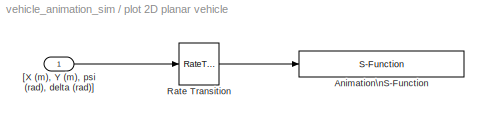
BLOCK [SubSystem] plot 2D planar vehicle
  Ports = [1]
  RequestExecContextInheritance = off
  SID = 138
  Variant = off
BLOCK [S-Function] plot 2D planar vehicle/Animation\nS-Function
  EnableBusSupport = off
  FunctionName = sanim_XY_vehicle_viz
  Parameters = Config
  Ports = [1]
  SFunctionDeploymentMode = off
  SID = 140
BLOCK [RateTransition] plot 2D planar vehicle/Rate Transition
  Integrity = off
  SID = 141
BLOCK [Inport] plot 2D planar vehicle/[X (m), Y (m), psi (rad), delta (rad)]
  IconDisplay = Port number
  SID = 139
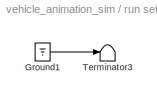
BLOCK [SubSystem] run setup_tracked_a.m
  OpenFcn = setup
  Ports = []
  RequestExecContextInheritance = off
  SID = 43
  Variant = off
BLOCK [Ground] run setup_tracked_a.m/Ground1
  SID = 44
BLOCK [Terminator] run setup_tracked_a.m/Terminator3
  SID = 45
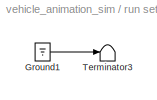
BLOCK [SubSystem] run setup_tracked_a.m1
  OpenFcn = edit setup
  Ports = []
  RequestExecContextInheritance = off
  SID = 46
  Variant = off
BLOCK [Ground] run setup_tracked_a.m1/Ground1
  SID = 47
BLOCK [Terminator] run setup_tracked_a.m1/Terminator3
  SID = 48
BLOCK [SubSystem] simple kinematic 2D\nsteered vehicle model
  Ports = [2, 3]
  RequestExecContextInheritance = off
  SID = 49
  Variant = off
BLOCK [Gain] simple kinematic 2D\nsteered vehicle model/1//L
  Gain = 1/vehicle_length
  OutDataTypeStr = Inherit: Inherit via internal rule
  ParamDataTypeStr = Inherit: Inherit via internal rule
  SID = 142
  SaturateOnIntegerOverflow = off
BLOCK [Display] simple kinematic 2D\nsteered vehicle model/Display
  Decimation = 1
  Ports = [1]
  SID = 173
BLOCK [Gain] simple kinematic 2D\nsteered vehicle model/Gain
  Gain = vehicle_length/2
  OutDataTypeStr = Inherit: Inherit via internal rule
  ParamDataTypeStr = Inherit: Inherit via internal rule
  SID = 153
  SaturateOnIntegerOverflow = off
BLOCK [Ground] simple kinematic 2D\nsteered vehicle model/Ground
  SID = 170
BLOCK [Integrator] simple kinematic 2D\nsteered vehicle model/Integrator
  InitialCondition = X_ic
  Ports = [1, 1]
  SID = 52
BLOCK [Integrator] simple kinematic 2D\nsteered vehicle model/Integrator1
  InitialCondition = Y_ic
  Ports = [1, 1]
  SID = 53
BLOCK [Integrator] simple kinematic 2D\nsteered vehicle model/Integrator2
  InitialCondition = yaw_ic
  Ports = [1, 1]
  SID = 54
BLOCK [Product] simple kinematic 2D\nsteered vehicle model/Product
  InputSameDT = off
  OutDataTypeStr = Inherit: Inherit via internal rule
  Ports = [2, 1]
  SID = 55
  SaturateOnIntegerOverflow = off
BLOCK [Product] simple kinematic 2D\nsteered vehicle model/Product1
  InputSameDT = off
  OutDataTypeStr = Inherit: Inherit via internal rule
  Ports = [2, 1]
  SID = 56
  SaturateOnIntegerOverflow = off
BLOCK [Product] simple kinematic 2D\nsteered vehicle model/Product2
  InputSameDT = off
  OutDataTypeStr = Inherit: Inherit via internal rule
  Ports = [2, 1]
  SID = 143
  SaturateOnIntegerOverflow = off
BLOCK [Product] simple kinematic 2D\nsteered vehicle model/Product3
  InputSameDT = off
  OutDataTypeStr = Inherit: Inherit via internal rule
  Ports = [2, 1]
  SID = 154
  SaturateOnIntegerOverflow = off
BLOCK [Product] simple kinematic 2D\nsteered vehicle model/Product4
  InputSameDT = off
  OutDataTypeStr = Inherit: Inherit via internal rule
  Ports = [2, 1]
  SID = 155
  SaturateOnIntegerOverflow = off
BLOCK [Sum] simple kinematic 2D\nsteered vehicle model/Sum
  IconShape = round
  InputSameDT = off
  Inputs = |+-
  OutDataTypeStr = Inherit: Inherit via internal rule
  Ports = [2, 1]
  SID = 151
  SaturateOnIntegerOverflow = off
BLOCK [Sum] simple kinematic 2D\nsteered vehicle model/Sum1
  IconShape = round
  InputSameDT = off
  Inputs = |++
  OutDataTypeStr = Inherit: Inherit via internal rule
  Ports = [2, 1]
  SID = 152
  SaturateOnIntegerOverflow = off
BLOCK [Terminator] simple kinematic 2D\nsteered vehicle model/Terminator
  SID = 171
BLOCK [Trigonometry] simple kinematic 2D\nsteered vehicle model/Trigonometric\nFunction
  Operator = cos
  Ports = [1, 1]
  SID = 60
BLOCK [Trigonometry] simple kinematic 2D\nsteered vehicle model/Trigonometric\nFunction1
  Ports = [1, 1]
  SID = 61
BLOCK [Trigonometry] simple kinematic 2D\nsteered vehicle model/Trigonometric\nFunction3
  Operator = tan
  Ports = [1, 1]
  SID = 172
BLOCK [Outport] simple kinematic 2D\nsteered vehicle model/X_cg (m)
  IconDisplay = Port number
  SID = 62
BLOCK [Outport] simple kinematic 2D\nsteered vehicle model/Y_cg (m)
  IconDisplay = Port number
  Port = 2
  SID = 63
BLOCK [Inport] simple kinematic 2D\nsteered vehicle model/delta_steer (rad)
  IconDisplay = Port number
  Port = 2
  SID = 50
BLOCK [Outport] simple kinematic 2D\nsteered vehicle model/psi (rad)
  IconDisplay = Port number
  Port = 3
  SID = 64
BLOCK [Inport] simple kinematic 2D\nsteered vehicle model/v_x (m//s)
  IconDisplay = Port number
  SID = 51
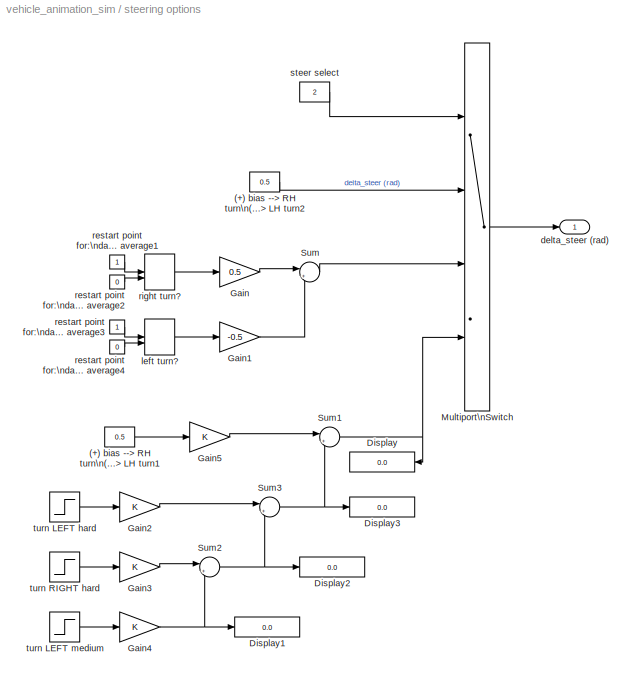
BLOCK [SubSystem] steering options
  Ports = [0, 1]
  RequestExecContextInheritance = off
  SID = 156
  Variant = off
BLOCK [Constant] steering options/(+) bias --> RH turn\n(-) bias --> LH turn1
  SID = 176
  Value = 0.5
BLOCK [Constant] steering options/(+) bias --> RH turn\n(-) bias --> LH turn2
  SID = 147
  Value = 0.5
BLOCK [Display] steering options/Display
  Decimation = 1
  Ports = [1]
  SID = 178
BLOCK [Display] steering options/Display1
  Decimation = 1
  Ports = [1]
  SID = 182
BLOCK [Display] steering options/Display2
  Decimation = 1
  Ports = [1]
  SID = 183
BLOCK [Display] steering options/Display3
  Decimation = 1
  Ports = [1]
  SID = 184
BLOCK [Gain] steering options/Gain
  Gain = 0.5
  OutDataTypeStr = Inherit: Inherit via internal rule
  ParamDataTypeStr = Inherit: Inherit via internal rule
  SID = 167
  SaturateOnIntegerOverflow = off
BLOCK [Gain] steering options/Gain1
  Gain = -0.5
  OutDataTypeStr = Inherit: Inherit via internal rule
  ParamDataTypeStr = Inherit: Inherit via internal rule
  SID = 168
  SaturateOnIntegerOverflow = off
BLOCK [Gain] steering options/Gain2
  OutDataTypeStr = Inherit: Inherit via internal rule
  ParamDataTypeStr = Inherit: Inherit via internal rule
  SID = 185
  SaturateOnIntegerOverflow = off
BLOCK [Gain] steering options/Gain3
  OutDataTypeStr = Inherit: Inherit via internal rule
  ParamDataTypeStr = Inherit: Inherit via internal rule
  SID = 186
  SaturateOnIntegerOverflow = off
BLOCK [Gain] steering options/Gain4
  OutDataTypeStr = Inherit: Inherit via internal rule
  ParamDataTypeStr = Inherit: Inherit via internal rule
  SID = 187
  SaturateOnIntegerOverflow = off
BLOCK [Gain] steering options/Gain5
  OutDataTypeStr = Inherit: Inherit via internal rule
  ParamDataTypeStr = Inherit: Inherit via internal rule
  SID = 188
  SaturateOnIntegerOverflow = off
BLOCK [MultiPortSwitch] steering options/Multiport\nSwitch
  InputSameDT = off
  Ports = [4, 1]
  SID = 158
  SaturateOnIntegerOverflow = off
BLOCK [Sum] steering options/Sum
  IconShape = round
  InputSameDT = off
  Inputs = |++
  OutDataTypeStr = Inherit: Inherit via internal rule
  Ports = [2, 1]
  SID = 163
  SaturateOnIntegerOverflow = off
BLOCK [Sum] steering options/Sum1
  IconShape = round
  InputSameDT = off
  Inputs = |++
  OutDataTypeStr = Inherit: Inherit via internal rule
  Ports = [2, 1]
  SID = 175
  SaturateOnIntegerOverflow = off
BLOCK [Sum] steering options/Sum2
  IconShape = round
  InputSameDT = off
  Inputs = |++
  OutDataTypeStr = Inherit: Inherit via internal rule
  Ports = [2, 1]
  SID = 179
  SaturateOnIntegerOverflow = off
BLOCK [Sum] steering options/Sum3
  IconShape = round
  InputSameDT = off
  Inputs = |++
  OutDataTypeStr = Inherit: Inherit via internal rule
  Ports = [2, 1]
  SID = 181
  SaturateOnIntegerOverflow = off
BLOCK [Outport] steering options/delta_steer (rad)
  IconDisplay = Port number
  SID = 157
BLOCK [ManualSwitch] steering options/left turn?
  CurrentSetting = 0
  SID = 164
BLOCK [Constant] steering options/restart point for:\ndata received average1
  SID = 161
BLOCK [Constant] steering options/restart point for:\ndata received average2
  SID = 162
  Value = 0
BLOCK [Constant] steering options/restart point for:\ndata received average3
  SID = 165
BLOCK [Constant] steering options/restart point for:\ndata received average4
  SID = 166
  Value = 0
BLOCK [ManualSwitch] steering options/right turn?
  SID = 160
BLOCK [Constant] steering options/steer select
  SID = 159
  Value = 2
BLOCK [Step] steering options/turn LEFT hard
  After = -1
  SID = 174
  SampleTime = 0
  Time = 10
BLOCK [Step] steering options/turn LEFT medium
  After = -0.5
  SID = 180
  SampleTime = 0
  Time = 30
BLOCK [Step] steering options/turn RIGHT hard
  After = +1
  SID = 177
  SampleTime = 0
  Time = 20
ANNOTATION (root): 2D Vehicle Visualization\nPlanar top-down animation.\nSAE Coordinates.
ANNOTATION (root): Marc Compere\<email>\ncreated : 30 July 2011\nmodified: 17 Jan 2016
ANNOTATION simple kinematic 2D\nsteered vehicle model: Marc Compere\<email>\ncreated : 30 July 2011\nmodified: 11 Jan 2016
ANNOTATION simple kinematic 2D\nsteered vehicle model: Simple kinematic vehicle model of wheelbase\nlength L and width W.\nNon-holonomic constraints on front and rear wheels\nallow rolling at low speed with no slipping:\n\n v_X = [ v_x \\cdot cos(\\psi_{heading}) -(L/2)<path>(\\psi_{heading}) ]\n v_Y = [ v_x \\cdot sin(\\psi_{heading}) +(L/2)<path>(\\psi_{heading}) ]\n
ANNOTATION simple kinematic 2D\nsteered vehicle model: X-position in\nterrain frame
ANNOTATION simple kinematic 2D\nsteered vehicle model: Y-position in\nterrain frame
ANNOTATION simple kinematic 2D\nsteered vehicle model: vehicle\nheading
ANNOTATION simple kinematic 2D\nsteered vehicle model: where:\n v_x - body-fixed vehicle velocity\n v_X - terrain frame X velocity\n v_Y - terrain frame Y velocity\n \\psi-dot - same as \\omega_z\n \\psi-dot - (v_x/L) \\cdot \\delta_{steer}
LINE Clock:1 -> Simulation Time (s):1
LINE Mux3:1 -> plot 2D planar vehicle:1
LINE const forward\nspeed (m//s):1 -> simple kinematic 2D\nsteered vehicle model:1
LINE plot 2D planar vehicle/Rate Transition:1 -> plot 2D planar vehicle/Animation\nS-Function:1
LINE plot 2D planar vehicle/[X (m), Y (m), psi (rad), delta (rad)]:1 -> plot 2D planar vehicle/Rate Transition:1
LINE run setup_tracked_a.m/Ground1:1 -> run setup_tracked_a.m/Terminator3:1
LINE run setup_tracked_a.m1/Ground1:1 -> run setup_tracked_a.m1/Terminator3:1
LINE simple kinematic 2D\nsteered vehicle model/1//L:1 -> simple kinematic 2D\nsteered vehicle model/Product2:1
NET simple kinematic 2D\nsteered vehicle model/Gain:1 -> simple kinematic 2D\nsteered vehicle model/Product3:1, simple kinematic 2D\nsteered vehicle model/Product4:1
LINE simple kinematic 2D\nsteered vehicle model/Ground:1 -> simple kinematic 2D\nsteered vehicle model/Trigonometric\nFunction3:1
LINE simple kinematic 2D\nsteered vehicle model/Integrator1:1 -> simple kinematic 2D\nsteered vehicle model/Y_cg (m):1
NET simple kinematic 2D\nsteered vehicle model/Integrator2:1 -> simple kinematic 2D\nsteered vehicle model/Trigonometric\nFunction1:1, simple kinematic 2D\nsteered vehicle model/Trigonometric\nFunction:1, simple kinematic 2D\nsteered vehicle model/psi (rad):1
LINE simple kinematic 2D\nsteered vehicle model/Integrator:1 -> simple kinematic 2D\nsteered vehicle model/X_cg (m):1
LINE simple kinematic 2D\nsteered vehicle model/Product1:1 -> simple kinematic 2D\nsteered vehicle model/Sum:1
NET simple kinematic 2D\nsteered vehicle model/Product2:1 -> simple kinematic 2D\nsteered vehicle model/Display:1, simple kinematic 2D\nsteered vehicle model/Gain:1, simple kinematic 2D\nsteered vehicle model/Integrator2:1
LINE simple kinematic 2D\nsteered vehicle model/Product3:1 -> simple kinematic 2D\nsteered vehicle model/Sum:2
LINE simple kinematic 2D\nsteered vehicle model/Product4:1 -> simple kinematic 2D\nsteered vehicle model/Sum1:2
LINE simple kinematic 2D\nsteered vehicle model/Product:1 -> simple kinematic 2D\nsteered vehicle model/Sum1:1
LINE simple kinematic 2D\nsteered vehicle model/Sum1:1 -> simple kinematic 2D\nsteered vehicle model/Integrator1:1
LINE simple kinematic 2D\nsteered vehicle model/Sum:1 -> simple kinematic 2D\nsteered vehicle model/Integrator:1
NET simple kinematic 2D\nsteered vehicle model/Trigonometric\nFunction1:1 -> simple kinematic 2D\nsteered vehicle model/Product3:2, simple kinematic 2D\nsteered vehicle model/Product:2
LINE simple kinematic 2D\nsteered vehicle model/Trigonometric\nFunction3:1 -> simple kinematic 2D\nsteered vehicle model/Terminator:1
NET simple kinematic 2D\nsteered vehicle model/Trigonometric\nFunction:1 -> simple kinematic 2D\nsteered vehicle model/Product1:2, simple kinematic 2D\nsteered vehicle model/Product4:2
LINE simple kinematic 2D\nsteered vehicle model/delta_steer (rad):1 -> simple kinematic 2D\nsteered vehicle model/Product2:2
NET simple kinematic 2D\nsteered vehicle model/v_x (m//s):1 -> simple kinematic 2D\nsteered vehicle model/1//L:1, simple kinematic 2D\nsteered vehicle model/Product1:1, simple kinematic 2D\nsteered vehicle model/Product:1
NET simple kinematic 2D\nsteered vehicle model:1 -> Mux3:1, X position (m):1
NET simple kinematic 2D\nsteered vehicle model:2 -> Mux3:2, Y position (m):1
NET simple kinematic 2D\nsteered vehicle model:3 -> Mux3:3, heading angle (rad):1
LINE steering options/(+) bias --> RH turn\n(-) bias --> LH turn1:1 -> steering options/Gain5:1
LINE steering options/(+) bias --> RH turn\n(-) bias --> LH turn2:1 -> steering options/Multiport\nSwitch:2
LINE steering options/Gain1:1 -> steering options/Sum:2
LINE steering options/Gain2:1 -> steering options/Sum3:1
LINE steering options/Gain3:1 -> steering options/Sum2:1
NET steering options/Gain4:1 -> steering options/Display1:1, steering options/Sum2:2
LINE steering options/Gain5:1 -> steering options/Sum1:1
LINE steering options/Gain:1 -> steering options/Sum:1
LINE steering options/Multiport\nSwitch:1 -> steering options/delta_steer (rad):1
NET steering options/Sum1:1 -> steering options/Display:1, steering options/Multiport\nSwitch:4
NET steering options/Sum2:1 -> steering options/Display2:1, steering options/Sum3:2
NET steering options/Sum3:1 -> steering options/Display3:1, steering options/Sum1:2
LINE steering options/Sum:1 -> steering options/Multiport\nSwitch:3
LINE steering options/left turn?:1 -> steering options/Gain1:1
LINE steering options/restart point for:\ndata received average1:1 -> steering options/right turn?:1
LINE steering options/restart point for:\ndata received average2:1 -> steering options/right turn?:2
LINE steering options/restart point for:\ndata received average3:1 -> steering options/left turn?:1
LINE steering options/restart point for:\ndata received average4:1 -> steering options/left turn?:2
LINE steering options/right turn?:1 -> steering options/Gain:1
LINE steering options/steer select:1 -> steering options/Multiport\nSwitch:1
LINE steering options/turn LEFT hard:1 -> steering options/Gain2:1
LINE steering options/turn LEFT medium:1 -> steering options/Gain4:1
LINE steering options/turn RIGHT hard:1 -> steering options/Gain3:1
NET steering options:1 -> Mux3:4, simple kinematic 2D\nsteered vehicle model:2
note: NET lines group one-source signal fan-out (src -> all destinations, sorted); 1:1 wires keep LINE
note: 2 file-system paths scrubbed to <path> (not preserved elsewhere — flat text is the only slx artifact)
